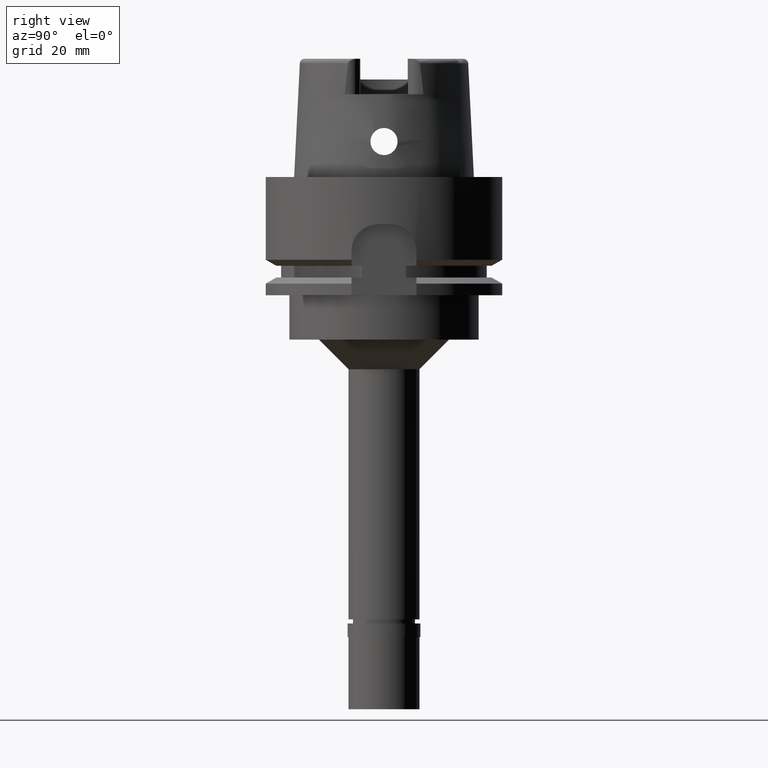
[diagram: clean part render]
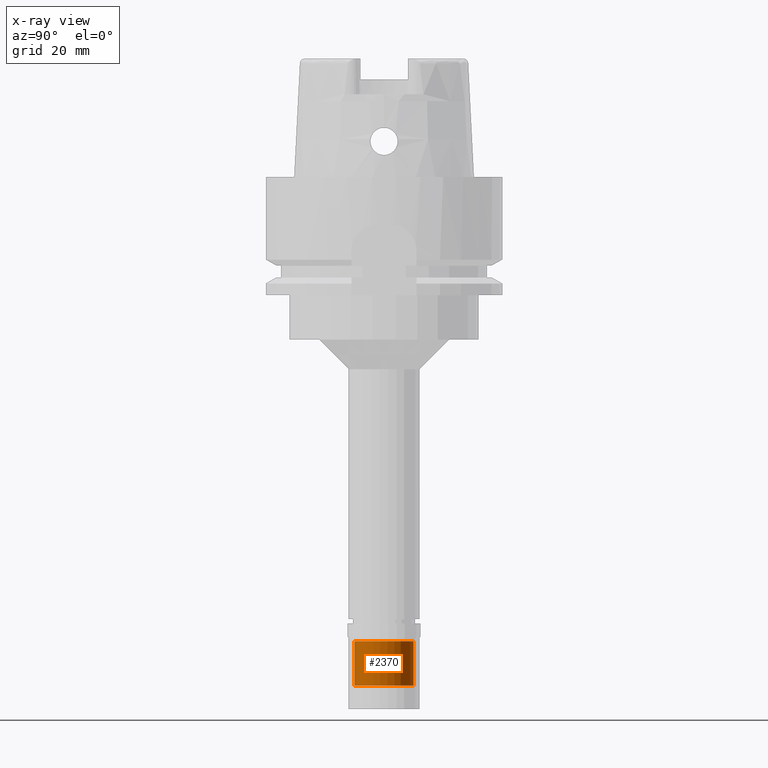
[diagram: x-ray — body ghosted, one internal face saturated and labeled with its STEP entity id]
A machine part, right view, then the same camera in x-ray: the body is ghosted and one INTERNAL B-rep face — a face not visible from any outside direction — is saturated and labeled: STEP entity #2370.
In plain terms, the highlighted cylindrical surface (edge-blend (fillet) strip) has radius 5 mm, axis along (0, 0, 1).
Its self-contained STEP definition (entity closure, byte-faithful):
#83 = DIRECTION ( 'NONE',  ( 0.0000000000000000000, 1.000000000000000000, 0.0000000000000000000 ) ) ;
#218 = CARTESIAN_POINT ( 'NONE',  ( 0.0000000000000000000, 0.0000000000000000000, -86.00000000000000000 ) ) ;
#280 = VERTEX_POINT ( 'NONE', #1307 ) ;
#303 = ORIENTED_EDGE ( 'NONE', *, *, #2275, .T. ) ;
#334 = EDGE_CURVE ( 'NONE', #3679, #1701, #5026, .T. ) ;
#402 = DIRECTION ( 'NONE',  ( 0.0000000000000000000, 1.000000000000000000, 0.0000000000000000000 ) ) ;
#471 = VERTEX_POINT ( 'NONE', #2809 ) ;
#703 = EDGE_CURVE ( 'NONE', #471, #280, #2969, .T. ) ;
#996 = VECTOR ( 'NONE', #3118, 1000.000000000000000 ) ;
#1307 = CARTESIAN_POINT ( 'NONE',  ( 0.0000000000000000000, 5.000000000000000000, -86.00000000000000000 ) ) ;
#1334 = CARTESIAN_POINT ( 'NONE',  ( 0.0000000000000000000, -5.000000000000000000, -78.50000000000000000 ) ) ;
#1373 = CYLINDRICAL_SURFACE ( 'NONE', #4196, 5.000000000000000000 ) ;
#1624 = AXIS2_PLACEMENT_3D ( 'NONE', #218, #3537, #5174 ) ;
#1701 = VERTEX_POINT ( 'NONE', #3477 ) ;
#2158 = ORIENTED_EDGE ( 'NONE', *, *, #3724, .T. ) ;
#2275 = EDGE_CURVE ( 'NONE', #471, #3679, #3420, .T. ) ;
#2370 = ADVANCED_FACE ( 'NONE', ( #3400 ), #1373, .T. ) ;
#2719 = AXIS2_PLACEMENT_3D ( 'NONE', #4383, #3314, #402 ) ;
#2809 = CARTESIAN_POINT ( 'NONE',  ( 0.0000000000000000000, 5.000000000000000000, -78.50000000000000000 ) ) ;
#2947 = CARTESIAN_POINT ( 'NONE',  ( 0.0000000000000000000, 0.0000000000000000000, -91.30000000000001137 ) ) ;
#2969 = LINE ( 'NONE', #3494, #996 ) ;
#2978 = DIRECTION ( 'NONE',  ( 0.0000000000000000000, 0.0000000000000000000, 1.000000000000000000 ) ) ;
#3118 = DIRECTION ( 'NONE',  ( 0.0000000000000000000, 0.0000000000000000000, -1.000000000000000000 ) ) ;
#3129 = EDGE_LOOP ( 'NONE', ( #303, #4256, #2158, #4399 ) ) ;
#3314 = DIRECTION ( 'NONE',  ( 0.0000000000000000000, 0.0000000000000000000, -1.000000000000000000 ) ) ;
#3400 = FACE_OUTER_BOUND ( 'NONE', #3129, .T. ) ;
#3420 = CIRCLE ( 'NONE', #2719, 5.000000000000000000 ) ;
#3477 = CARTESIAN_POINT ( 'NONE',  ( 0.0000000000000000000, -5.000000000000000000, -86.00000000000000000 ) ) ;
#3494 = CARTESIAN_POINT ( 'NONE',  ( 0.0000000000000000000, 5.000000000000000000, -78.50000000000000000 ) ) ;
#3537 = DIRECTION ( 'NONE',  ( 0.0000000000000000000, 0.0000000000000000000, 1.000000000000000000 ) ) ;
#3679 = VERTEX_POINT ( 'NONE', #4401 ) ;
#3724 = EDGE_CURVE ( 'NONE', #1701, #280, #4306, .T. ) ;
#4196 = AXIS2_PLACEMENT_3D ( 'NONE', #2947, #2978, #83 ) ;
#4256 = ORIENTED_EDGE ( 'NONE', *, *, #334, .T. ) ;
#4306 = CIRCLE ( 'NONE', #1624, 5.000000000000000000 ) ;
#4383 = CARTESIAN_POINT ( 'NONE',  ( 0.0000000000000000000, 0.0000000000000000000, -78.50000000000000000 ) ) ;
#4399 = ORIENTED_EDGE ( 'NONE', *, *, #703, .F. ) ;
#4401 = CARTESIAN_POINT ( 'NONE',  ( 0.0000000000000000000, -5.000000000000000000, -78.50000000000000000 ) ) ;
#4627 = DIRECTION ( 'NONE',  ( 0.0000000000000000000, 0.0000000000000000000, -1.000000000000000000 ) ) ;
#5026 = LINE ( 'NONE', #1334, #5284 ) ;
#5174 = DIRECTION ( 'NONE',  ( 0.0000000000000000000, -1.000000000000000000, 0.0000000000000000000 ) ) ;
#5284 = VECTOR ( 'NONE', #4627, 1000.000000000000000 ) ;